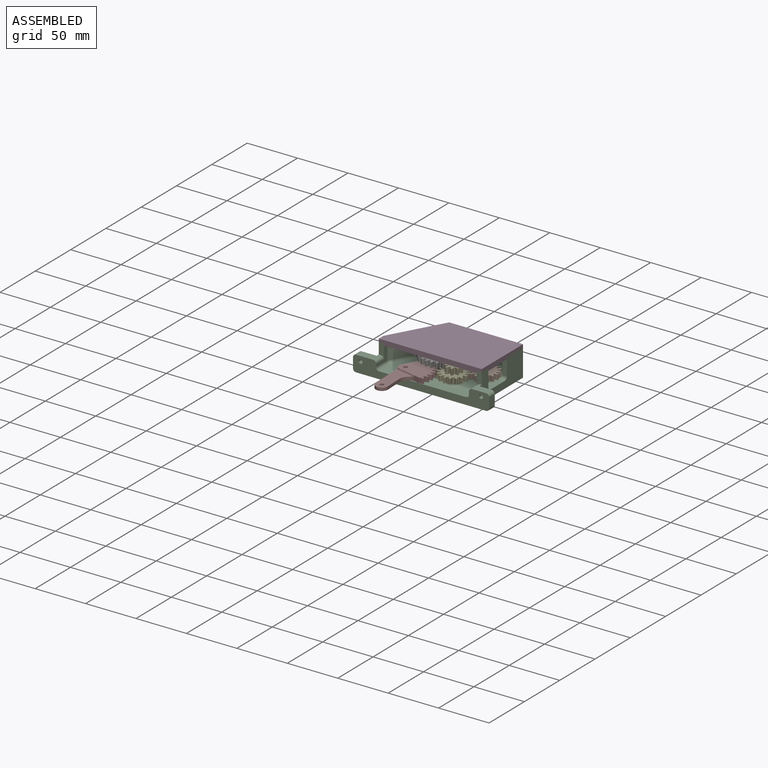
[diagram: assembled view]
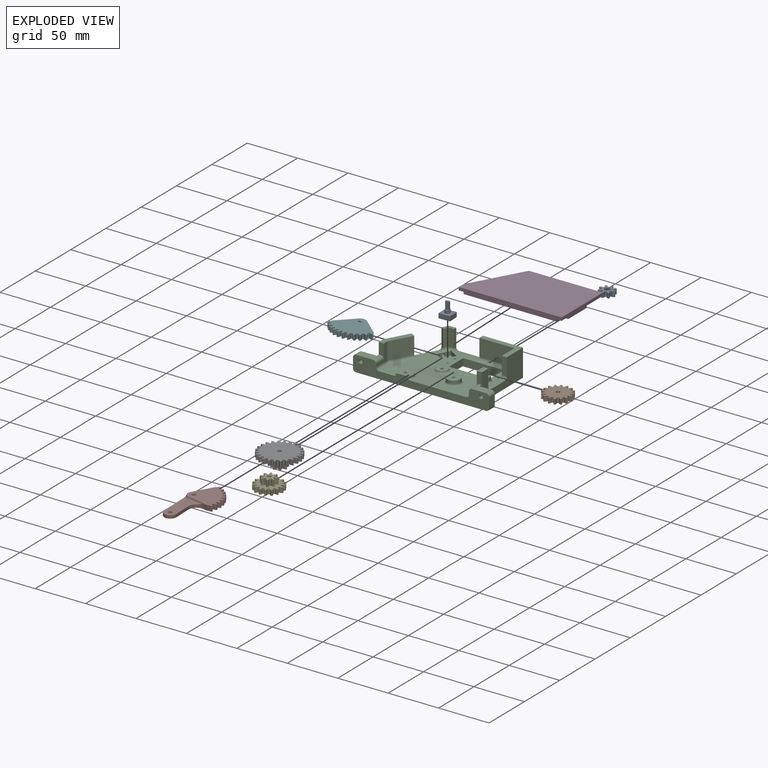
[diagram: exploded view]
GUIDED TOUR — MATED ASSEMBLY (Onshape document 57996cd1e4b03c2aa6b2565d, AutoMate assembly 57996cd1e4b03c2aa6b2565d_b96098378f857d898a4bc9d3_5e764573617dde567fc7aed4_default)

This assembly has 9 components, labeled P0..P8 below (a component is one placed occurrence of a part; the same part can appear more than once), held together by 16 mates. A mate is a constraint between two components; its type names the relative motion it leaves free:
  CYLINDRICAL — leaves both rotation about and translation along the listed axis free,
  PLANAR — leaves sliding in the plane through the listed point (normal = the listed direction) and rotation about that normal free,
  REVOLUTE — leaves rotation about the listed axis free (a hinge).
Axis/direction vectors are unit vectors and 'through' points are millimeter coordinates, both in the assembly's world frame.

MATES
  1. PLANAR "Planar 1": P2 <-> P4, direction (0.000, 0.000, 1.000) through (-10.97, -34.58, 0.00) mm
  2. REVOLUTE "Revolute 3": P2 <-> P7, axis (0.000, 0.000, 1.000) through (-50.75, -46.08, -2.00) mm
  3. PLANAR "Planar 5": P0 <-> P5, direction (0.999, 0.032, 0.000) through (-44.30, 7.04, -2.27) mm
  4. REVOLUTE "Revolute 1": P4 <-> P2, axis (0.000, 0.000, -1.000) through (-10.97, -34.58, 0.00) mm
  5. REVOLUTE "Revolute 5": P1 <-> P2, axis (0.000, 0.000, -1.000) through (7.55, -17.64, 0.00) mm
  6. PLANAR "Planar 4": P8 <-> P1, direction (0.000, 0.000, 1.000) through (4.56, 0.87, 5.00) mm
  7. PLANAR "Planar 6": P0 <-> P5, direction (0.000, 0.000, 1.000) through (-46.05, 6.98, 1.45) mm
  8. PLANAR "Planar 9": P3 <-> P2, direction (0.000, -1.000, 0.000) through (-30.30, -40.08, 15.56) mm
  9. PLANAR "Planar 2": P6 <-> P2, direction (0.000, 0.000, -1.000) through (-36.45, -19.42, -3.00) mm
  10. PLANAR "Planar 10": P3 <-> P2, direction (0.000, 0.000, -1.000) through (15.75, 13.35, 15.00) mm
  11. REVOLUTE "Revolute 4": P0 <-> P2, axis (0.000, 0.000, 1.000) through (-46.05, 6.98, -9.00) mm
  12. PLANAR "Planar 3": P7 <-> P2, direction (0.000, 0.000, -1.000) through (-43.68, -51.21, -2.00) mm
  13. PLANAR "Planar 7": P0 <-> P5, direction (-0.032, 0.999, 0.000) through (-46.08, 7.98, -2.27) mm
  14. REVOLUTE "Revolute 2": P6 <-> P2, axis (0.000, 0.000, -1.000) through (-32.07, -20.96, -3.00) mm
  15. PLANAR "Planar 8": P3 <-> P2, direction (1.000, 0.000, 0.000) through (20.75, -17.64, 13.00) mm
  16. CYLINDRICAL "Cylindrical 1": P4 <-> P2, axis (0.000, 0.000, 1.000) through (-10.97, -34.58, 11.00) mm

ASSEMBLY ORDER
  1. P2 — the base component [order verified]
  2. P3 [order verified]
  3. P5 [order verified]
  4. P6 [order verified]
  5. P0 [order verified]
  6. P4 [order verified]
  7. P1 [order verified]
  8. P7 [order verified]
  9. P8 [order verified]
(P3, P6 verified with a relaxed clearance tolerance: the source model stores slight part interference there.)
Order-tag legend:
  [order verified] — this step's position reverses a verified removal order: the component was checked to insert without passing through the ones already placed.

Of the 9 components, 1 carries the full construction recipe — the FeatureScript program that regenerates the part's solid from scratch; the rest are supplied as boundary geometry only.
Each toured component is shown spotlighted twice — in the assembled view, then in the exploded view, where a leader line traces a displaced component back to its assembled socket (saturated green if recipe-attached, orange if geometry-only; every other component desaturated gray) — followed by its recipe or geometry summary and the mates that hold it.
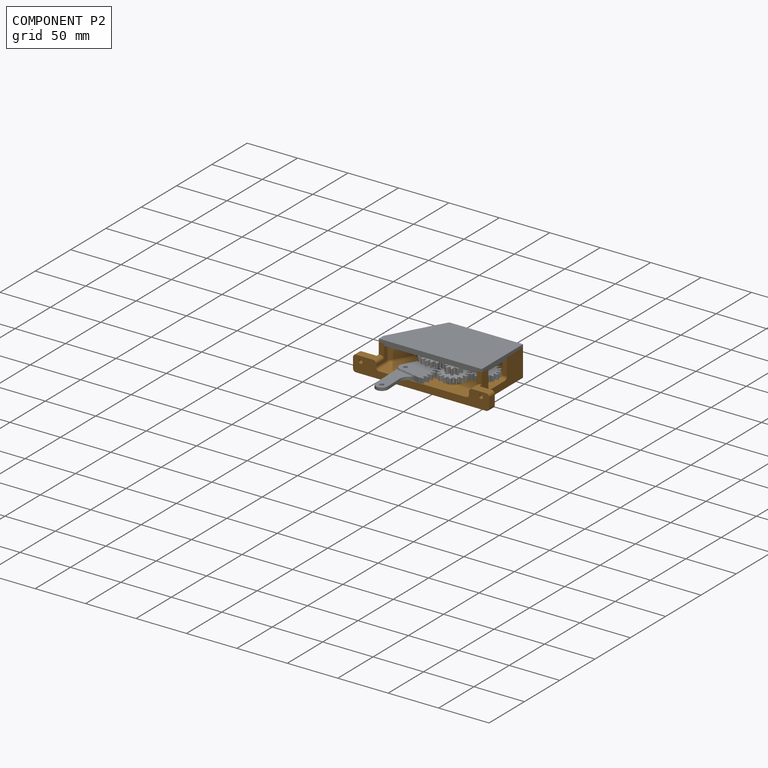
[diagram: component P2 — assembled]
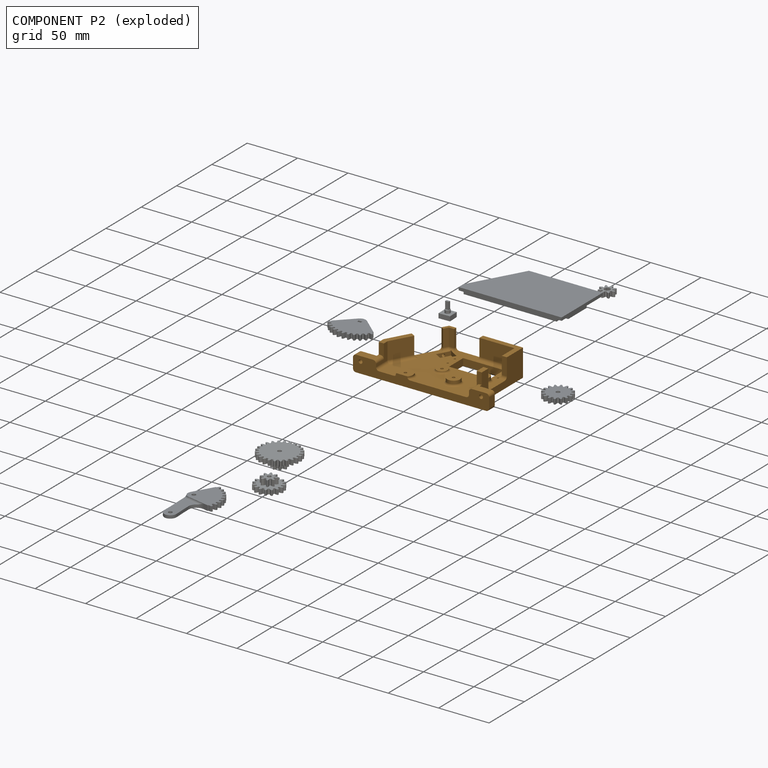
[diagram: component P2 — exploded]
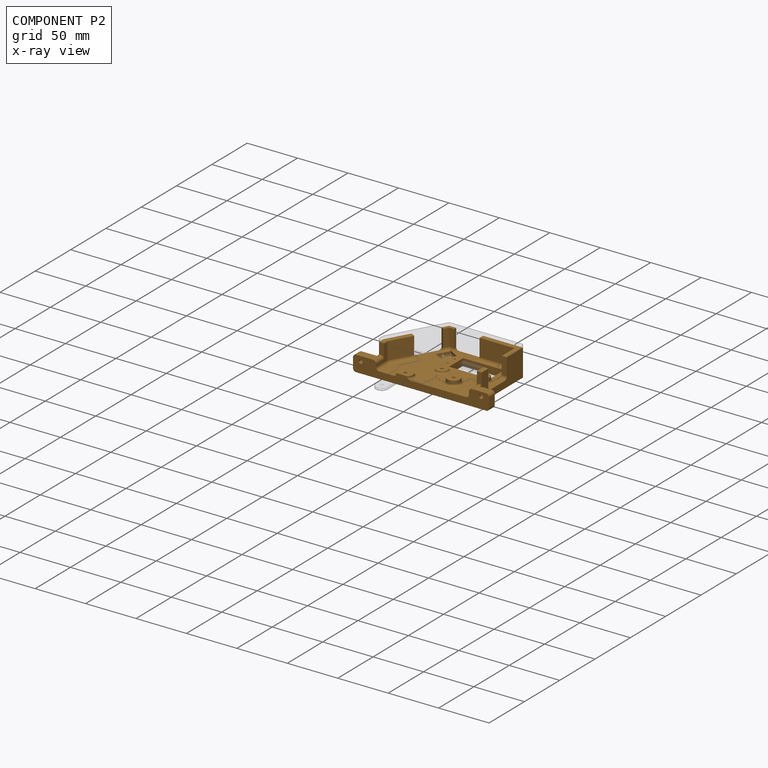
[diagram: component P2 — x-ray view]
COMPONENT P2 — geometry summary (no construction recipe available for this part):
  bounding box: 135.1 x 72.4 x 27.1 mm
  B-rep topology: 1 solid, 93 faces, 528 edges
  volume: 55158 mm^3 (21% of its bounding box)
Held by: PLANAR mate "Planar 1" to P4; REVOLUTE mate "Revolute 3" to P7; REVOLUTE mate "Revolute 1" to P4; REVOLUTE mate "Revolute 5" to P1; PLANAR mate "Planar 9" to P3; PLANAR mate "Planar 2" to P6; PLANAR mate "Planar 10" to P3; REVOLUTE mate "Revolute 4" to P0; PLANAR mate "Planar 3" to P7; REVOLUTE mate "Revolute 2" to P6; PLANAR mate "Planar 8" to P3; CYLINDRICAL mate "Cylindrical 1" to P4.
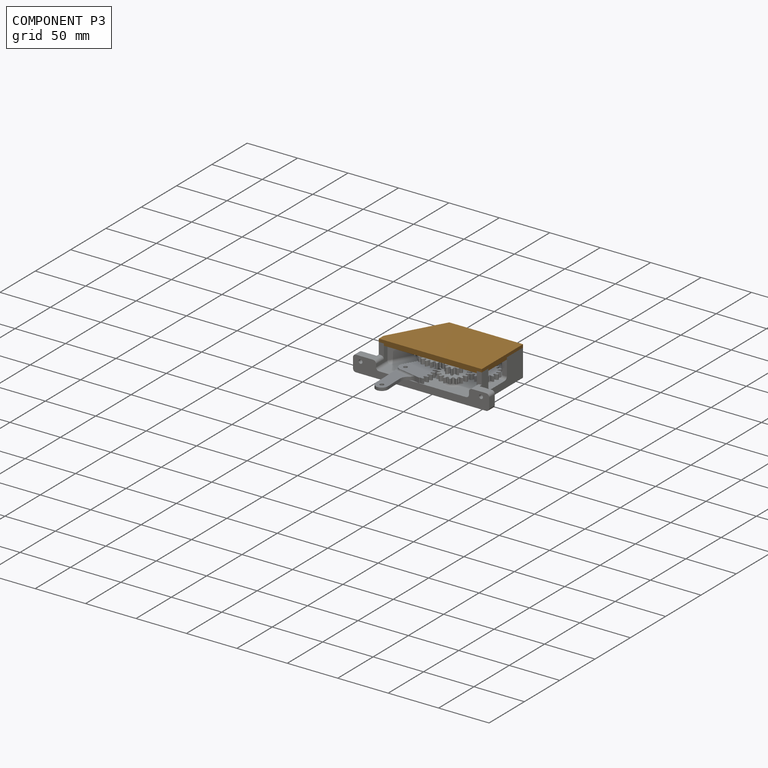
[diagram: component P3 — assembled]
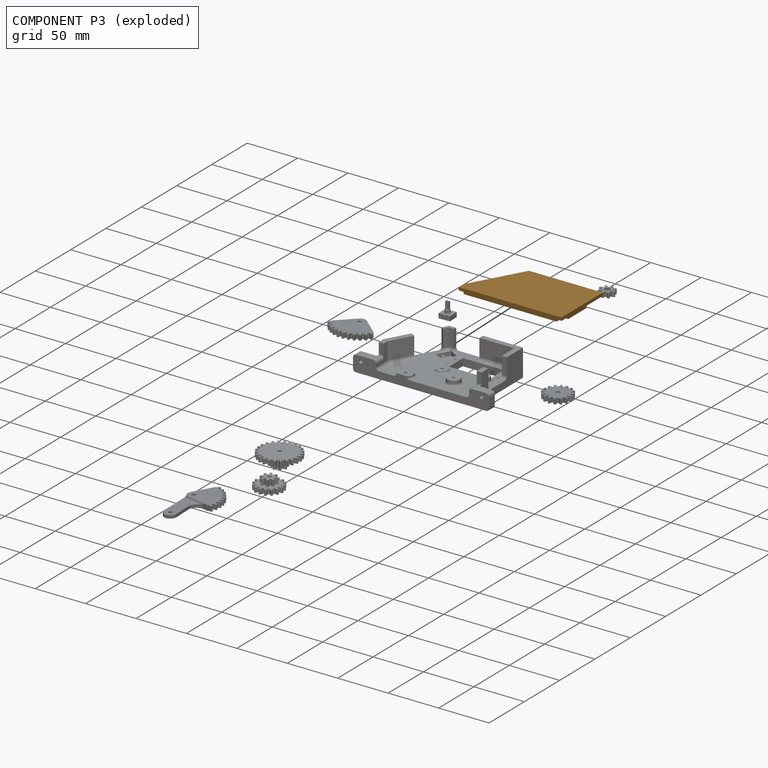
[diagram: component P3 — exploded]
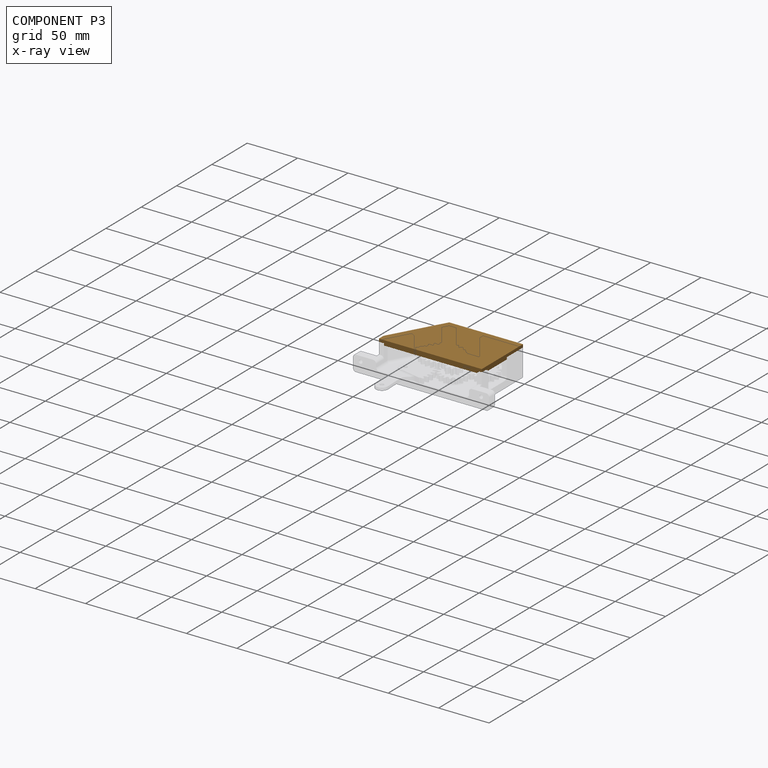
[diagram: component P3 — x-ray view]
COMPONENT P3 — geometry summary (no construction recipe available for this part):
  bounding box: 102.1 x 58.4 x 5.0 mm
  B-rep topology: 1 solid, 24 faces, 132 edges
  volume: 25025 mm^3 (84% of its bounding box)
Held by: PLANAR mate "Planar 9" to P2; PLANAR mate "Planar 10" to P2; PLANAR mate "Planar 8" to P2.
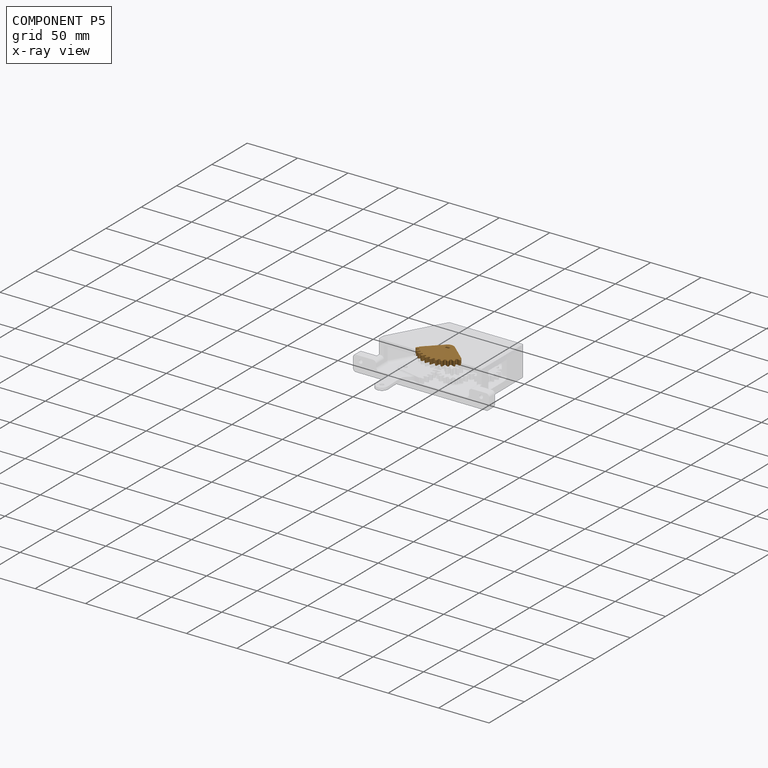
[diagram: component P5 — x-ray view]
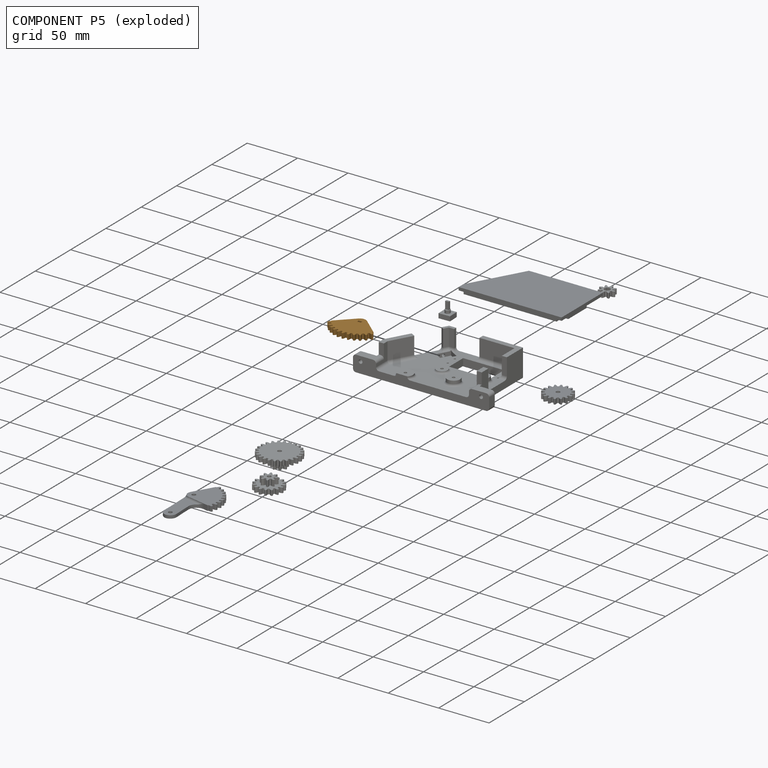
[diagram: component P5 — exploded]
COMPONENT P5 — geometry summary (no construction recipe available for this part):
  bounding box: 43.5 x 32.5 x 5.0 mm
  B-rep topology: 1 solid, 99 faces, 584 edges
  volume: 4026 mm^3 (57% of its bounding box)
  symmetry: mirror-symmetric across its z mid-plane
Held by: PLANAR mate "Planar 5" to P0; PLANAR mate "Planar 6" to P0; PLANAR mate "Planar 7" to P0.
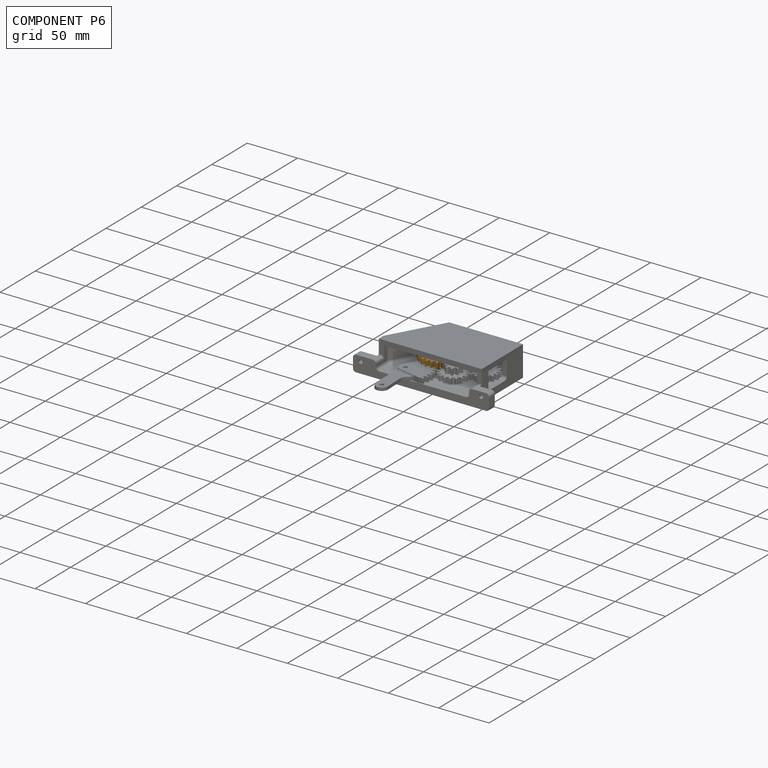
[diagram: component P6 — assembled]
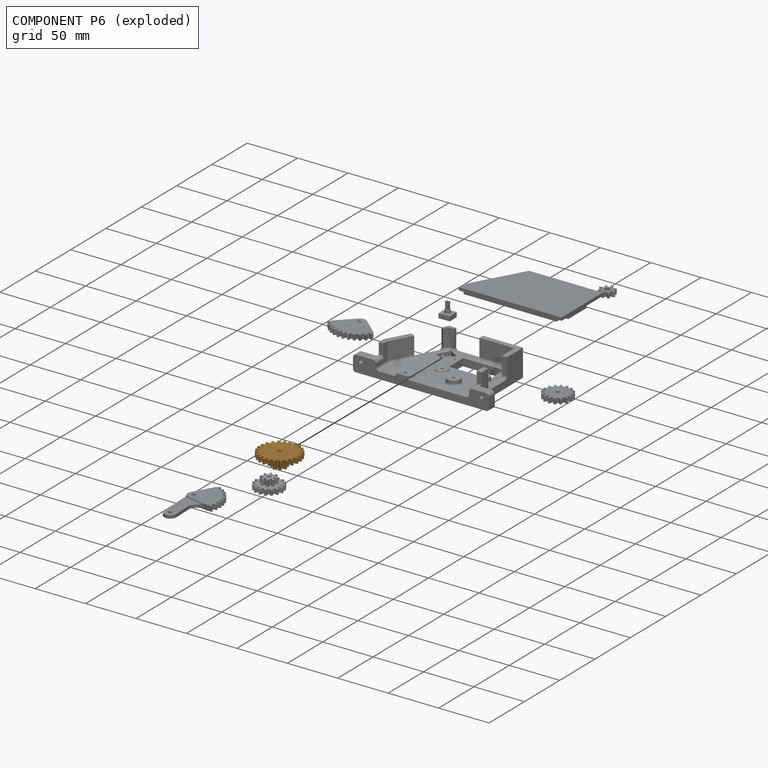
[diagram: component P6 — exploded]
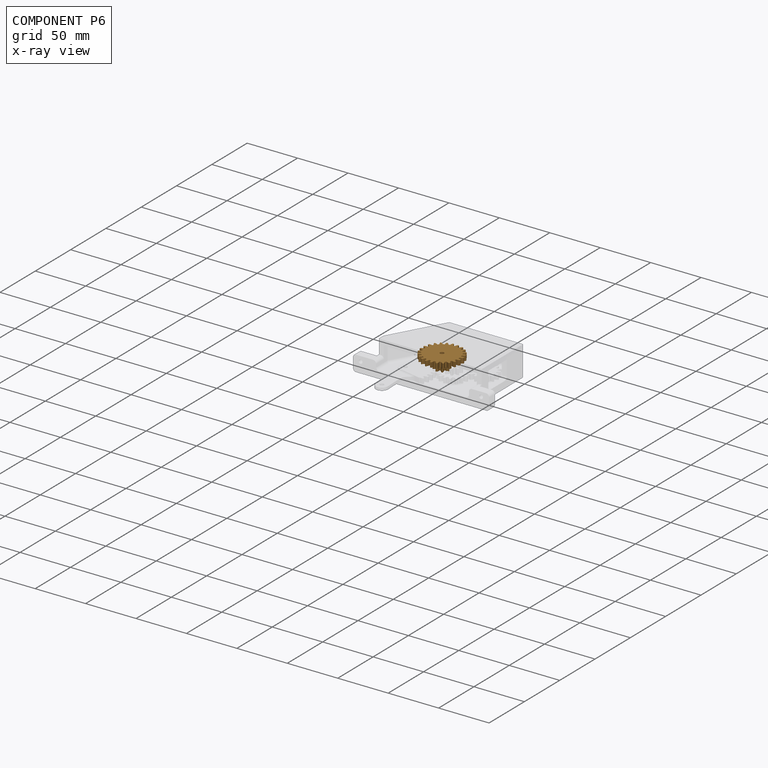
[diagram: component P6 — x-ray view]
COMPONENT P6 — geometry summary (no construction recipe available for this part):
  bounding box: 40.2 x 40.2 x 14.0 mm
  B-rep topology: 1 solid, 260 faces, 1544 edges
  volume: 6242 mm^3 (28% of its bounding box)
  symmetry: 4-fold rotationally symmetric about the z axis; mirror-symmetric across its x mid-plane, y mid-plane
Held by: PLANAR mate "Planar 2" to P2; REVOLUTE mate "Revolute 2" to P2.
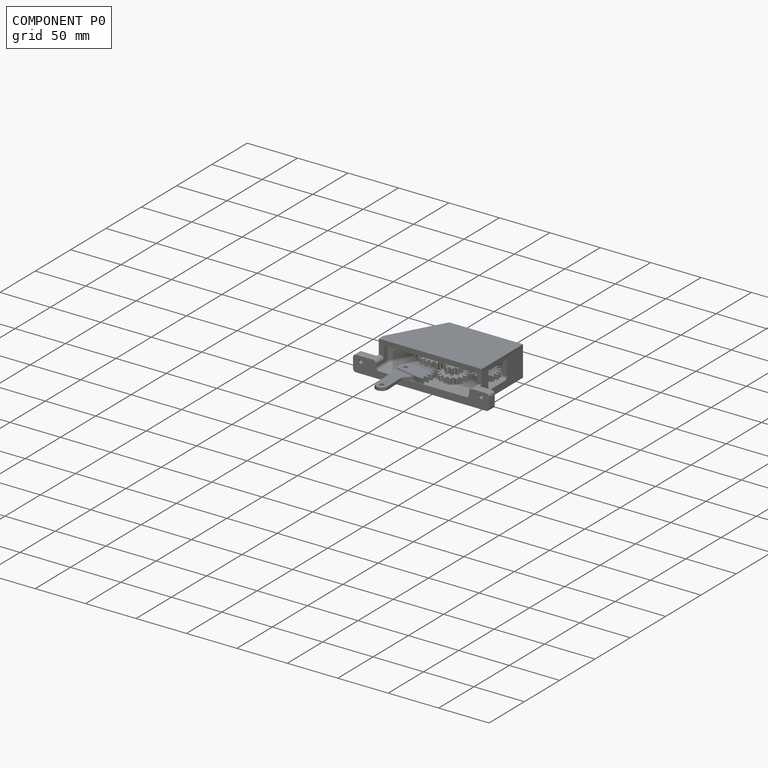
[diagram: component P0 — assembled]
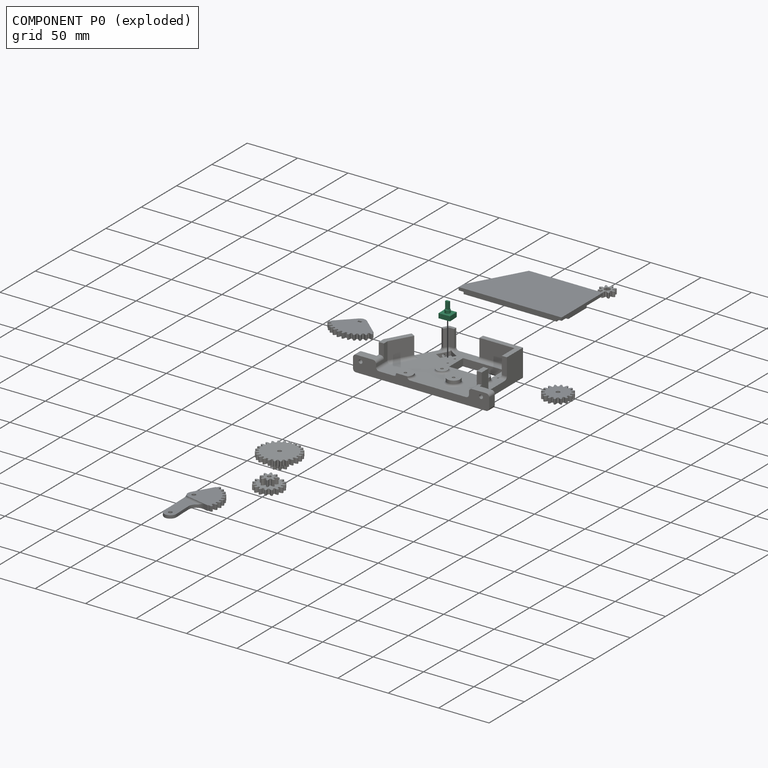
[diagram: component P0 — exploded]
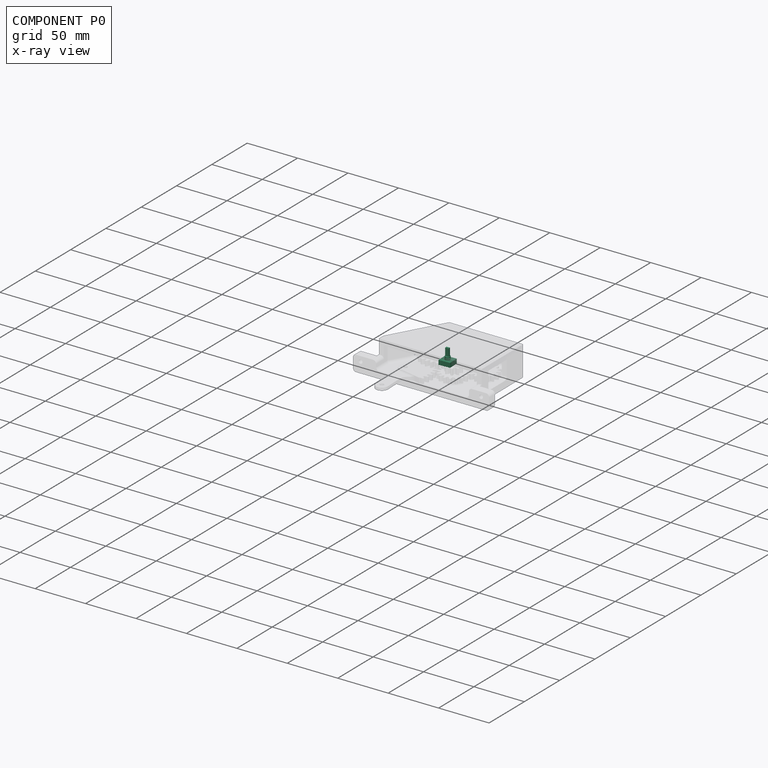
[diagram: component P0 — x-ray view]
COMPONENT P0 — recipe-attached (CADFS 00205810, mesh-verified: the recipe's output STEP matches this component's geometry to below the mesh-comparison resolution (tessellation chordal tolerance ~0.0318 mm)).
Held by: PLANAR mate "Planar 5" to P5; PLANAR mate "Planar 6" to P5; REVOLUTE mate "Revolute 4" to P2; PLANAR mate "Planar 7" to P5.
Construction recipe (FeatureScript — the CAD program that rebuilds this solid; sketch coordinates are in the units given by the * unit suffixes, e.g. mm):

FeatureScript 1511;
import(path : "onshape/std/geometry.fs", version : "1511.0");
import(path : "onshape/std/common.fs", version : "1511.0");
const mm = millimeter;
const VERTEX = EntityType.VERTEX;
const EDGE = EntityType.EDGE;
const FACE = EntityType.FACE;
const BODY = EntityType.BODY;
function v(x, y){return vector(x, y);}
function OD(order){return orderDisambiguation(order);}
function OSD(set){return originalSetDisambiguation(set);}
function TD(topology){return topologyDisambiguation(topology);}
function TDD(query){return trueDependencyDisambiguation(query);}
function sQuery(a, b, c) {return sketchEntityQuery(a, b, c);}

annotation { "Feature Type Name" : "Feature", "Feature Type Description" : "" }
export const myFeature = defineFeature(function(context is Context, id is Id, definition is map)
    precondition{}
    {
        {
            var Q0;
            Q0=qCreatedBy(makeId("Top.planeOp"),FACE);
            var sketch = newSketch(context, id + "F0", { "sketchPlane" : qUnion([Q0])});
            skLineSegment(sketch, "E0.bottom", {"start": v(5, -5.55) * mm, "end": v(-5, -5.55) * mm});
            skLineSegment(sketch, "E0.top", {"start": v(5, 5.55) * mm, "end": v(-5, 5.55) * mm});
            skLineSegment(sketch, "E0.left", {"start": v(5, -5.55) * mm, "end": v(5, 5.55) * mm});
            skLineSegment(sketch, "E0.right", {"start": v(-5, -5.55) * mm, "end": v(-5, 5.55) * mm});
            skPoint(sketch, "E0.middle", {"position": v(0, 0) * mm});
            skSolve(sketch);
        }
        {
            var Q0;
            Q0=qSketchRegion(id+"F0",true);
            extrude(context, id + "F1", {"entities" : qUnion([Q0]), "depth" : 4.55 * mm});
        }
        {
            var Q0;
            Q0=makeQuery(id+"F1.opExtrude","CAP_FACE",FACE,{"disambiguationData":[OSD([sQuery(id+"F0.wireOp",EDGE,"E0.bottom"),sQuery(id+"F0.wireOp",EDGE,"E0.top"),sQuery(id+"F0.wireOp",EDGE,"E0.left"),sQuery(id+"F0.wireOp",EDGE,"E0.right")])],"isStart":false});
            var sketch = newSketch(context, id + "F2", { "sketchPlane" : qUnion([Q0])});
            skCircle(sketch, "E1", {"center": v(0, 0) * mm, "radius": 2.5 * mm});
            skSolve(sketch);
        }
        {
            var Q0;
            Q0=qSketchRegion(id+"F2",true);
            extrude(context, id + "F3", {"entities" : qUnion([Q0]), "operationType" : NewBodyOperationType.ADD, "depth" : 3 * mm});
        }
        {
            var Q0;
            Q0=makeQuery(id+"F3.opExtrude","CAP_FACE",FACE,{"disambiguationData":[OSD([sQuery(id+"F2.wireOp",EDGE,"E1")])],"isStart":false});
            var sketch = newSketch(context, id + "F4", { "sketchPlane" : qUnion([Q0])});
            skLineSegment(sketch, "E2.bottom", {"start": v(1, 1.75) * mm, "end": v(-1, 1.75) * mm});
            skLineSegment(sketch, "E2.top", {"start": v(1, -1.75) * mm, "end": v(-1, -1.75) * mm});
            skLineSegment(sketch, "E2.left", {"start": v(1, 1.75) * mm, "end": v(1, -1.75) * mm});
            skLineSegment(sketch, "E2.right", {"start": v(-1, 1.75) * mm, "end": v(-1, -1.75) * mm});
            skPoint(sketch, "E2.middle", {"position": v(0, 0) * mm});
            skSolve(sketch);
        }
        {
            var Q0;
            Q0=qSketchRegion(id+"F4",true);
            extrude(context, id + "F5", {"entities" : qUnion([Q0]), "operationType" : NewBodyOperationType.ADD, "depth" : 7.45 * mm});
        }
    });
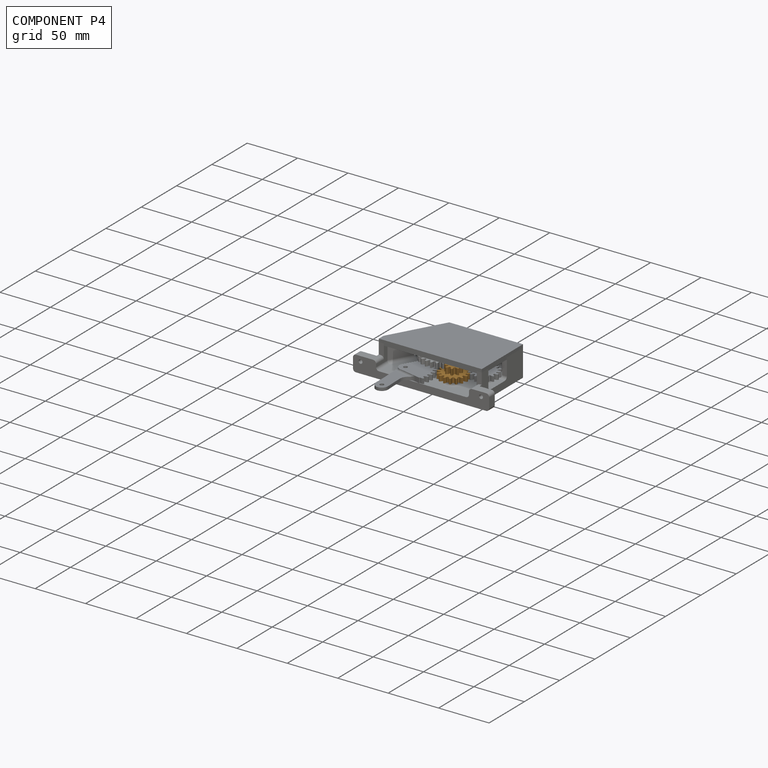
[diagram: component P4 — assembled]
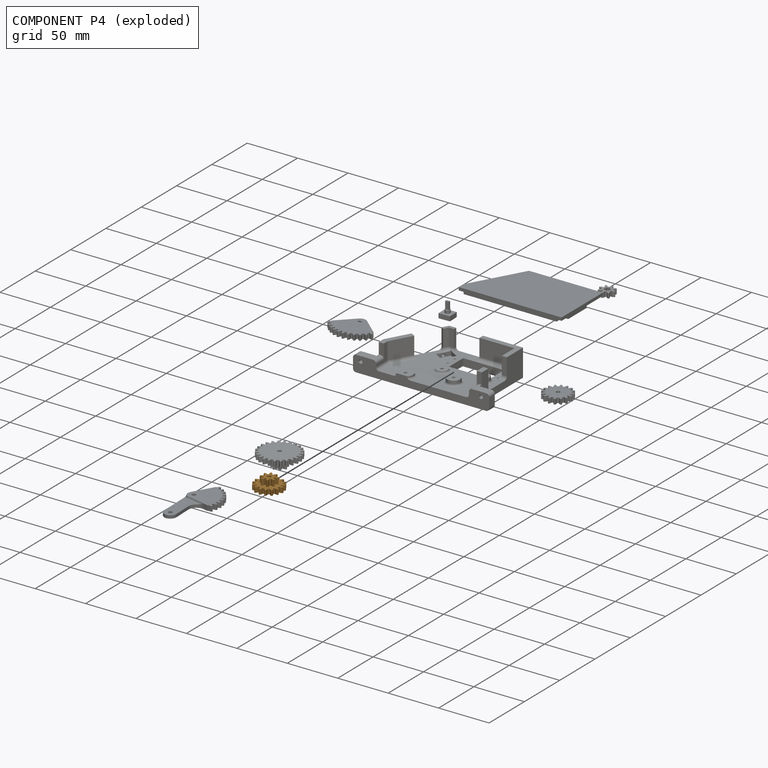
[diagram: component P4 — exploded]
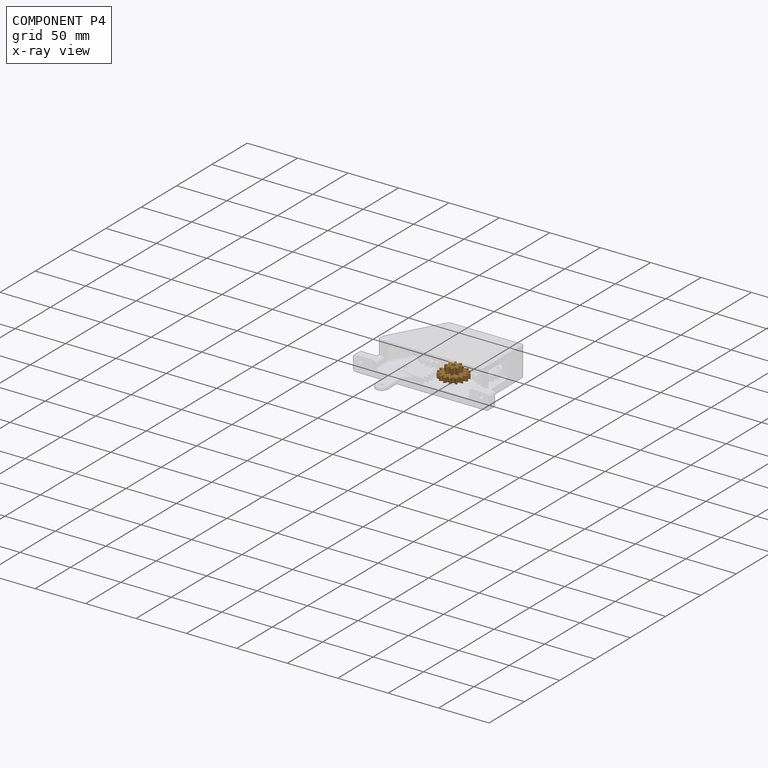
[diagram: component P4 — x-ray view]
COMPONENT P4 — geometry summary (no construction recipe available for this part):
  bounding box: 27.8 x 27.8 x 11.0 mm
  B-rep topology: 1 solid, 196 faces, 1158 edges
  volume: 2929 mm^3 (34% of its bounding box)
  symmetry: 4-fold rotationally symmetric about the z axis; mirror-symmetric across its x mid-plane, y mid-plane
Held by: PLANAR mate "Planar 1" to P2; REVOLUTE mate "Revolute 1" to P2; CYLINDRICAL mate "Cylindrical 1" to P2.
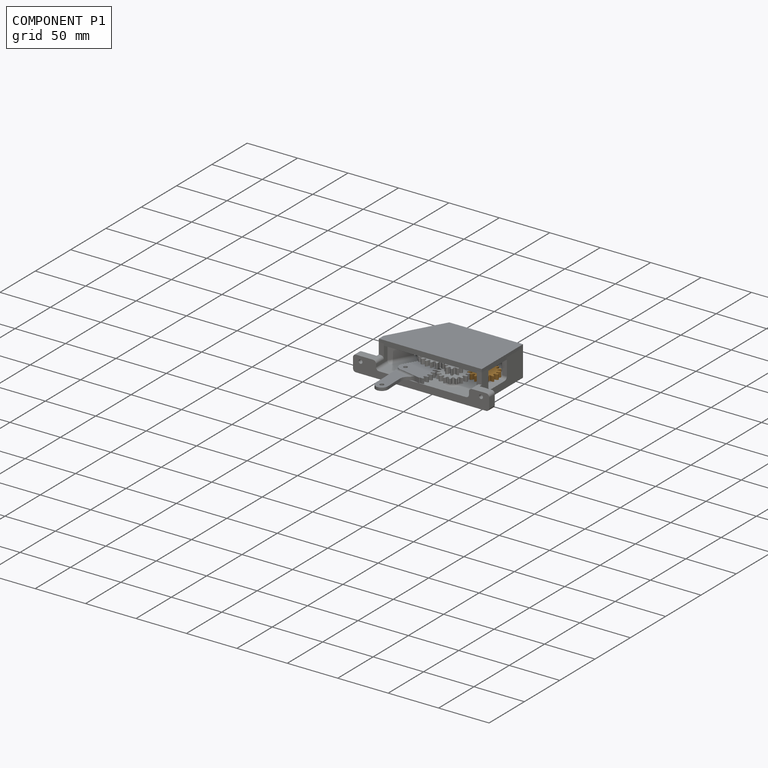
[diagram: component P1 — assembled]
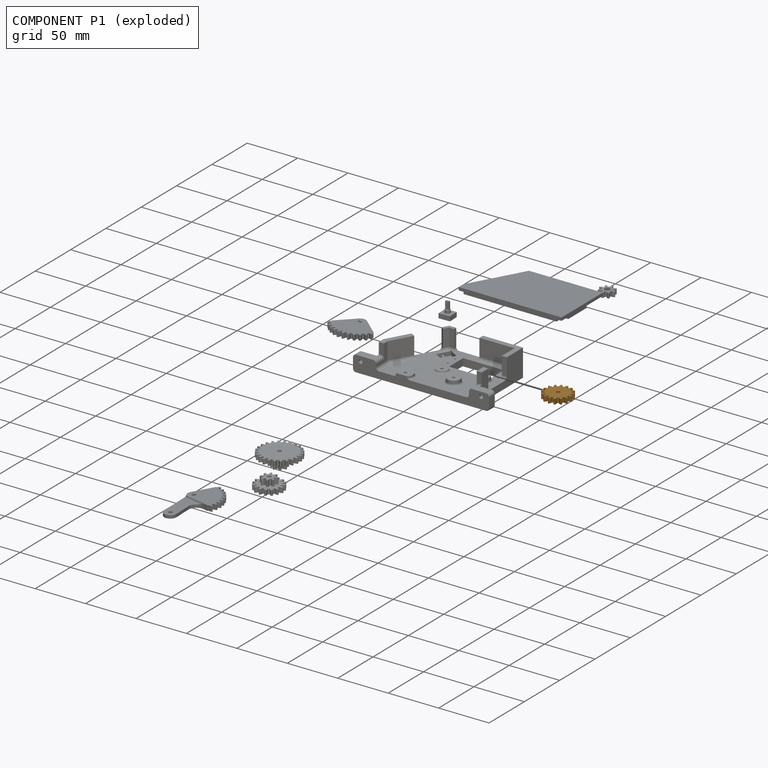
[diagram: component P1 — exploded]
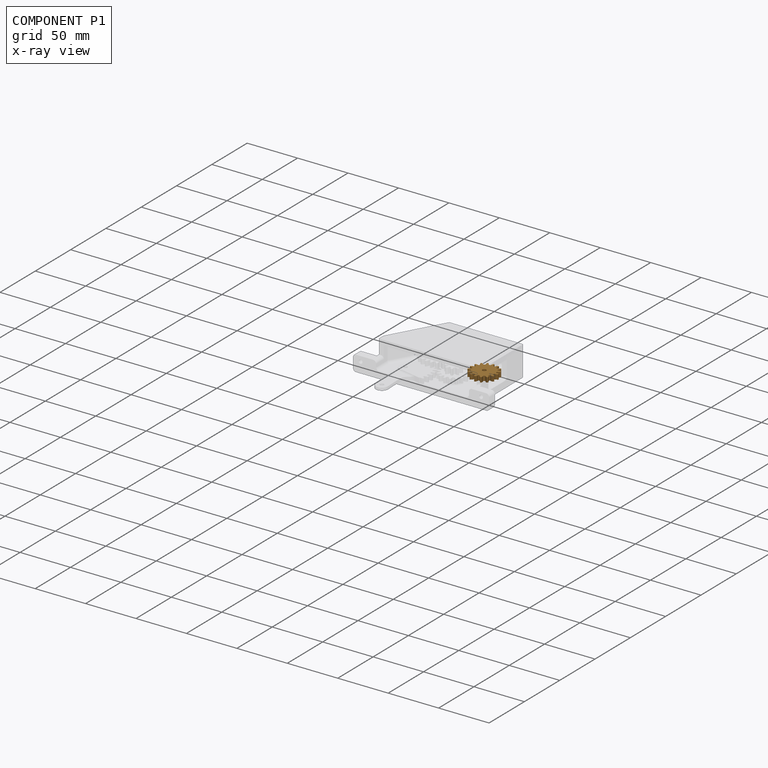
[diagram: component P1 — x-ray view]
COMPONENT P1 — geometry summary (no construction recipe available for this part):
  bounding box: 27.8 x 27.8 x 5.0 mm
  B-rep topology: 1 solid, 131 faces, 774 edges
  volume: 2308 mm^3 (60% of its bounding box)
  symmetry: 2-fold rotationally symmetric about the x axis; 2-fold rotationally symmetric about the y axis; 4-fold rotationally symmetric about the z axis; mirror-symmetric across its x mid-plane, y mid-plane, z mid-plane
Held by: REVOLUTE mate "Revolute 5" to P2; PLANAR mate "Planar 4" to P8.
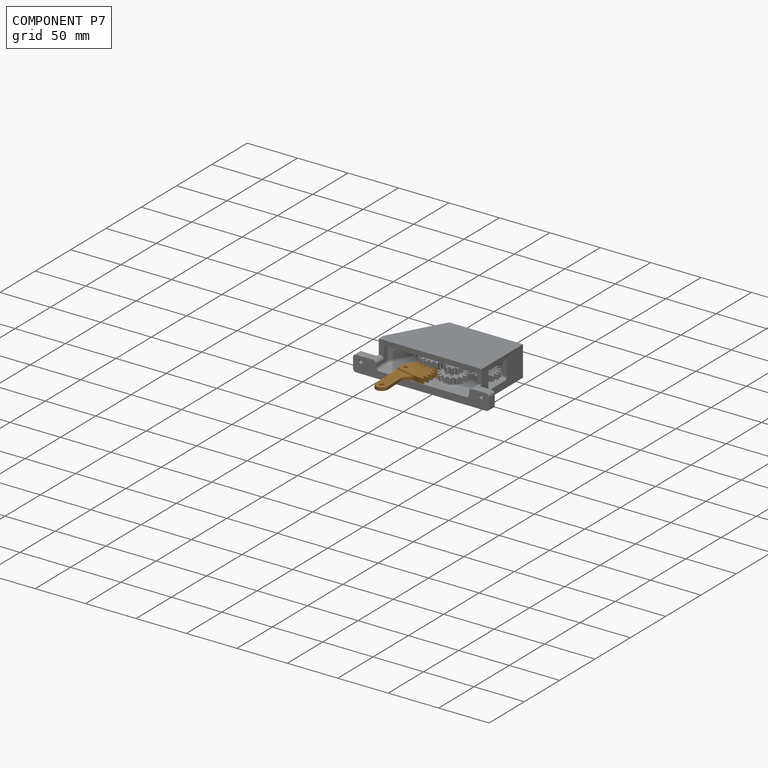
[diagram: component P7 — assembled]
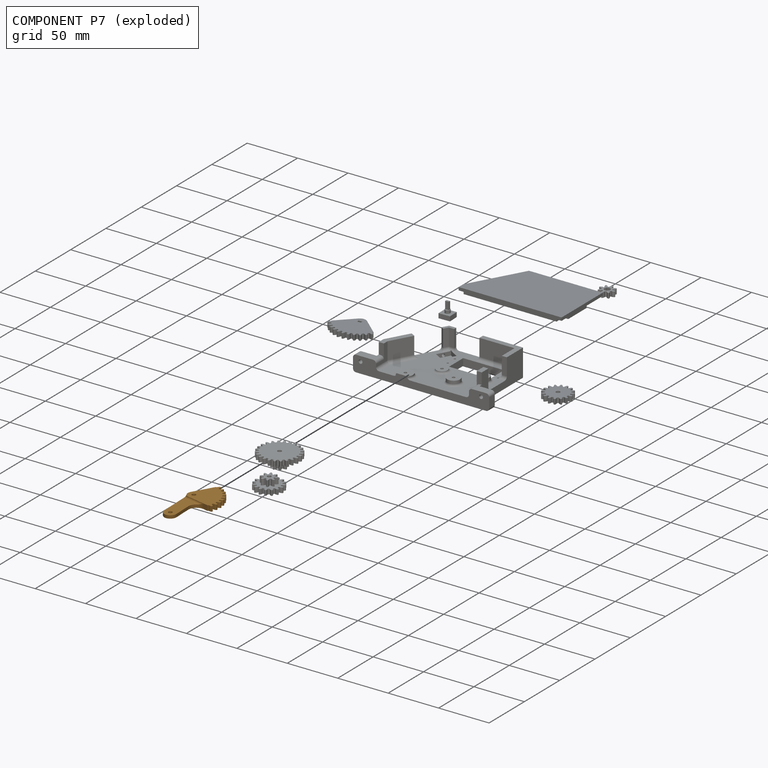
[diagram: component P7 — exploded]
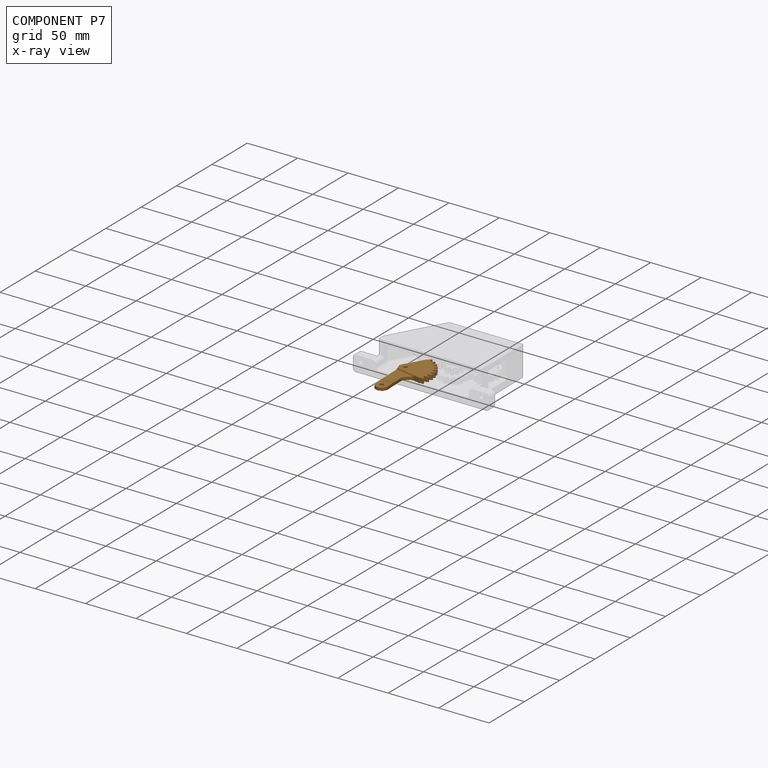
[diagram: component P7 — x-ray view]
COMPONENT P7 — geometry summary (no construction recipe available for this part):
  bounding box: 65.5 x 36.5 x 6.4 mm
  B-rep topology: 1 solid, 87 faces, 508 edges
  volume: 4746 mm^3 (31% of its bounding box)
Held by: REVOLUTE mate "Revolute 3" to P2; PLANAR mate "Planar 3" to P2.
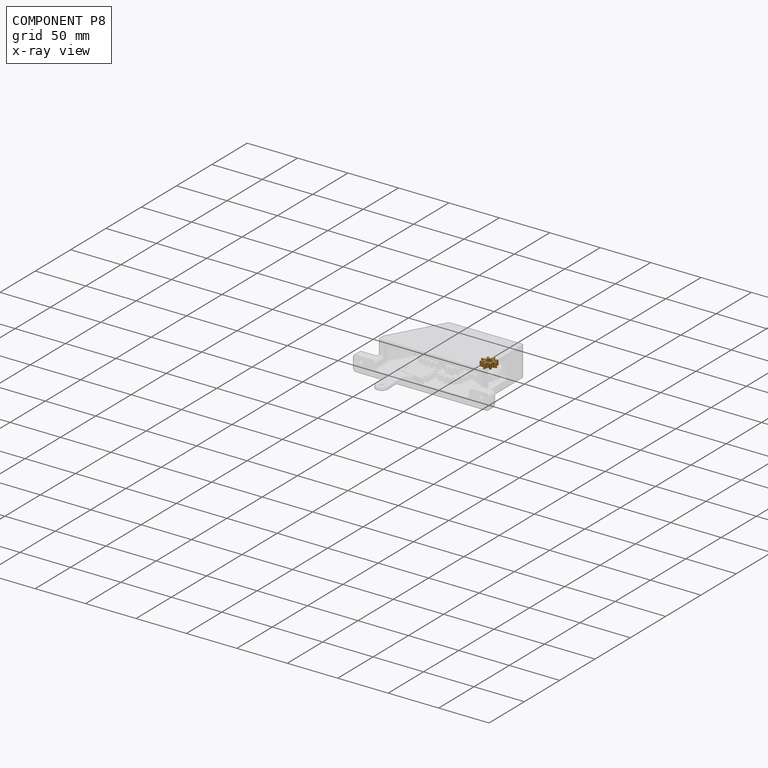
[diagram: component P8 — x-ray view]
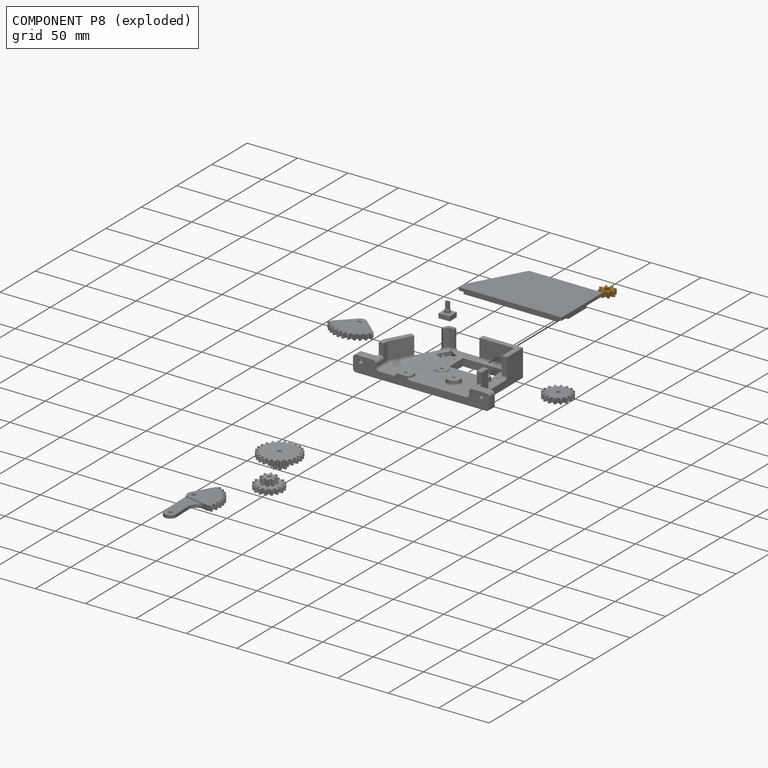
[diagram: component P8 — exploded]
COMPONENT P8 — geometry summary (no construction recipe available for this part):
  bounding box: 15.5 x 15.5 x 5.0 mm
  B-rep topology: 1 solid, 188 faces, 1112 edges
  volume: 481 mm^3 (40% of its bounding box)
  symmetry: 2-fold rotationally symmetric about the z axis; mirror-symmetric across its x mid-plane, y mid-plane
Held by: PLANAR mate "Planar 4" to P1.
PROVENANCE & LICENSES
Assembly (occurrences, transforms, mates, per-part STEP geometry): AutoMate dataset, Zenodo record 7776208, CC0.
Construction recipes: CADFS (HuggingFace VladPyatov/CADFS, CC-BY-4.0, layered over the ABC dataset), FeatureScript reconstruction programs keyed by ABC model id.
Join: ABC meta listings map ABC model id -> Onshape documentId; within a shared document, parts are matched by geometric signature (bounding-box dims + volume at 0.1% relative tolerance, exact B-rep face/solid counts).
Verification: 1 of this assembly's 9 components carries a recipe attachment, and every attachment is mesh-verified: the CADFS STEP and the AutoMate member STEP were compared as meshes in their shared local frame (symmetric sampled-point-to-mesh distance); worst across the 1 attachment: below the mesh-comparison resolution (tessellation chordal tolerance ~0.0318 mm) on a 21 mm part.
Renders: orthographic iso camera (az 35 / el 25); the floor grid conveys scale (grid pitch printed in each image; no ruler). In the exploded view each component is displaced by its stored offset vector: the offsets alone carry the explosion direction (mate normal/axis signs are not orientation cues and do not encode it), and separation distances are assigned per mate-chain, not proportionally to assembly-order depth.
